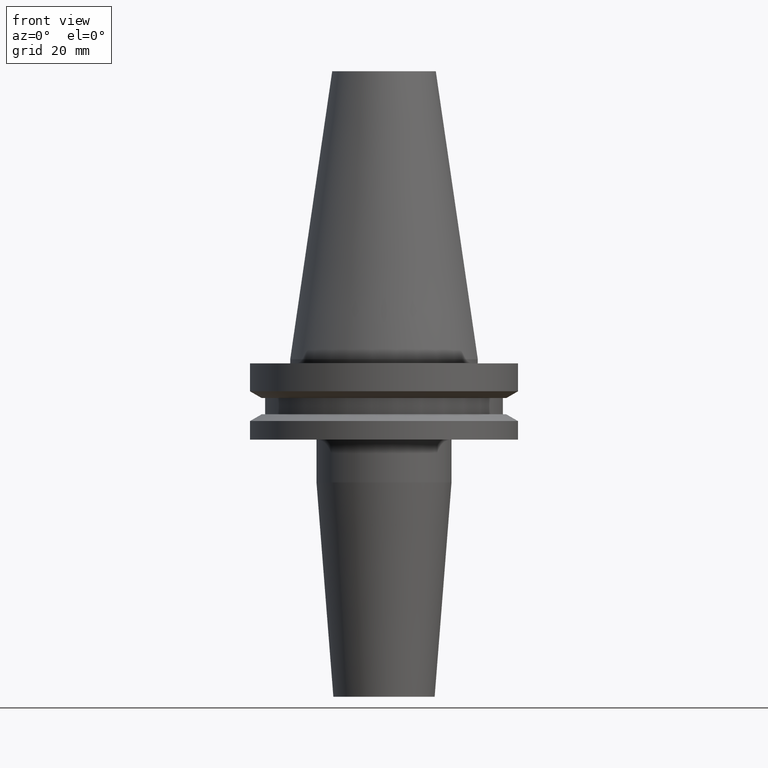
[diagram: clean part render]
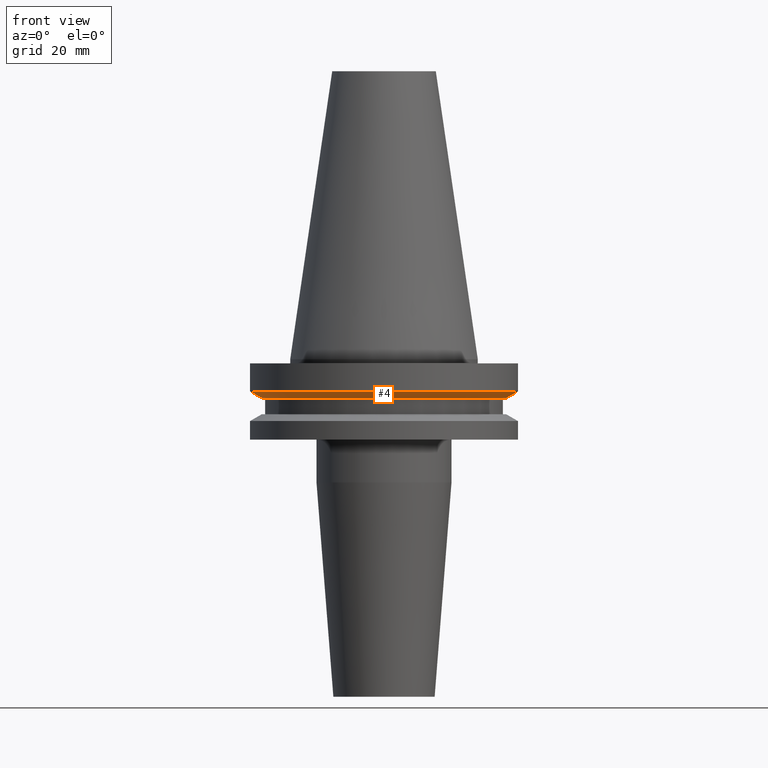
[diagram: same view with one face highlighted and labeled with its STEP entity id]
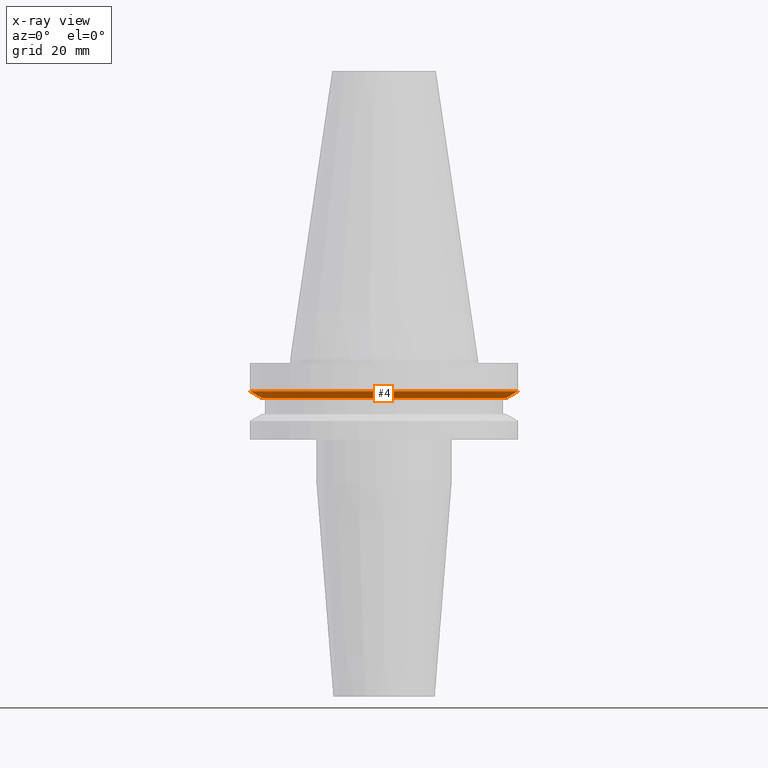
[diagram: x-ray of the same camera — body ghosted, the highlighted face saturated]
A machine part, front view. The second image highlights one B-rep face of the part: STEP entity #4.
The next image is the same camera in x-ray: the body ghosted, the highlighted face saturated — about 0% of this face is hidden behind the body in this view.
In plain terms, the highlighted conical surface has half-angle 60 deg.
Its self-contained STEP definition (entity closure, byte-faithful):
#1 = DIRECTION ( 'NONE',  ( -0.8660254037844389297, 1.060575238724907285E-16, 0.4999999999999995004 ) ) ;
#4 = ADVANCED_FACE ( 'NONE', ( #33 ), #757, .T. ) ;
#24 = AXIS2_PLACEMENT_3D ( 'NONE', #611, #748, #386 ) ;
#33 = FACE_OUTER_BOUND ( 'NONE', #308, .T. ) ;
#79 = ORIENTED_EDGE ( 'NONE', *, *, #431, .T. ) ;
#95 = ORIENTED_EDGE ( 'NONE', *, *, #332, .T. ) ;
#113 = CARTESIAN_POINT ( 'NONE',  ( 31.75000000000000000, 0.000000000000000000, -7.605276606597335842 ) ) ;
#130 = LINE ( 'NONE', #608, #551 ) ;
#159 = AXIS2_PLACEMENT_3D ( 'NONE', #195, #749, #626 ) ;
#183 = DIRECTION ( 'NONE',  ( 1.000000000000000000, 0.000000000000000000, 0.000000000000000000 ) ) ;
#195 = CARTESIAN_POINT ( 'NONE',  ( 0.000000000000000000, 0.000000000000000000, -9.205000000000005400 ) ) ;
#202 = AXIS2_PLACEMENT_3D ( 'NONE', #360, #350, #183 ) ;
#223 = DIRECTION ( 'NONE',  ( 0.8660254037844389297, 0.000000000000000000, 0.4999999999999995004 ) ) ;
#229 = CARTESIAN_POINT ( 'NONE',  ( -28.97919780457007732, 3.718590885307660666E-15, -9.205000000000005400 ) ) ;
#234 = ORIENTED_EDGE ( 'NONE', *, *, #771, .F. ) ;
#253 = CIRCLE ( 'NONE', #202, 31.75000000000000000 ) ;
#284 = VERTEX_POINT ( 'NONE', #229 ) ;
#308 = EDGE_LOOP ( 'NONE', ( #399, #79, #95, #234 ) ) ;
#317 = VECTOR ( 'NONE', #223, 1000.000000000000000 ) ;
#319 = CARTESIAN_POINT ( 'NONE',  ( 28.97919780457007732, 0.000000000000000000, -9.205000000000005400 ) ) ;
#332 = EDGE_CURVE ( 'NONE', #486, #338, #358, .T. ) ;
#338 = VERTEX_POINT ( 'NONE', #113 ) ;
#350 = DIRECTION ( 'NONE',  ( -0.000000000000000000, -0.000000000000000000, 1.000000000000000000 ) ) ;
#358 = LINE ( 'NONE', #426, #317 ) ;
#360 = CARTESIAN_POINT ( 'NONE',  ( 0.000000000000000000, 0.000000000000000000, -7.605276606597335842 ) ) ;
#386 = DIRECTION ( 'NONE',  ( 1.000000000000000000, 0.000000000000000000, 0.000000000000000000 ) ) ;
#390 = EDGE_CURVE ( 'NONE', #284, #395, #130, .T. ) ;
#395 = VERTEX_POINT ( 'NONE', #686 ) ;
#399 = ORIENTED_EDGE ( 'NONE', *, *, #390, .F. ) ;
#426 = CARTESIAN_POINT ( 'NONE',  ( 28.97919780457007732, 0.000000000000000000, -9.205000000000005400 ) ) ;
#431 = EDGE_CURVE ( 'NONE', #284, #486, #528, .T. ) ;
#486 = VERTEX_POINT ( 'NONE', #319 ) ;
#528 = CIRCLE ( 'NONE', #24, 28.97919780457007732 ) ;
#551 = VECTOR ( 'NONE', #1, 1000.000000000000000 ) ;
#608 = CARTESIAN_POINT ( 'NONE',  ( -28.97919780457007732, 3.548928183322474856E-15, -9.205000000000005400 ) ) ;
#611 = CARTESIAN_POINT ( 'NONE',  ( 0.000000000000000000, 0.000000000000000000, -9.205000000000005400 ) ) ;
#626 = DIRECTION ( 'NONE',  ( 1.000000000000000000, 0.000000000000000000, 0.000000000000000000 ) ) ;
#686 = CARTESIAN_POINT ( 'NONE',  ( -31.75000000000000000, 3.888253587292846476E-15, -7.605276606597335842 ) ) ;
#748 = DIRECTION ( 'NONE',  ( -0.000000000000000000, -0.000000000000000000, 1.000000000000000000 ) ) ;
#749 = DIRECTION ( 'NONE',  ( -0.000000000000000000, -0.000000000000000000, 1.000000000000000000 ) ) ;
#757 = CONICAL_SURFACE ( 'NONE', #159, 28.97919780457007732, 1.047197551196598297 ) ;
#771 = EDGE_CURVE ( 'NONE', #395, #338, #253, .T. ) ;